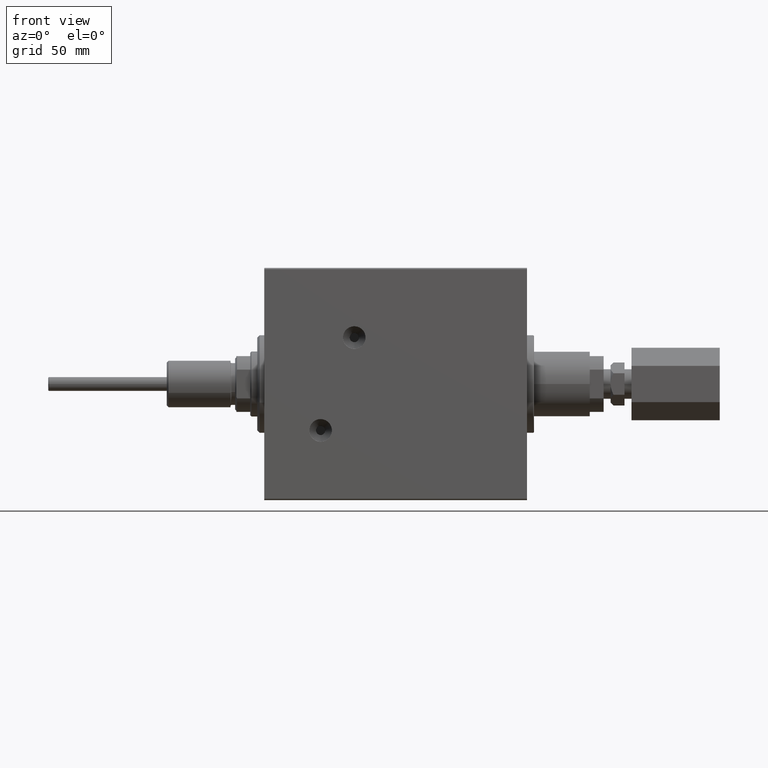
[diagram: clean part render]
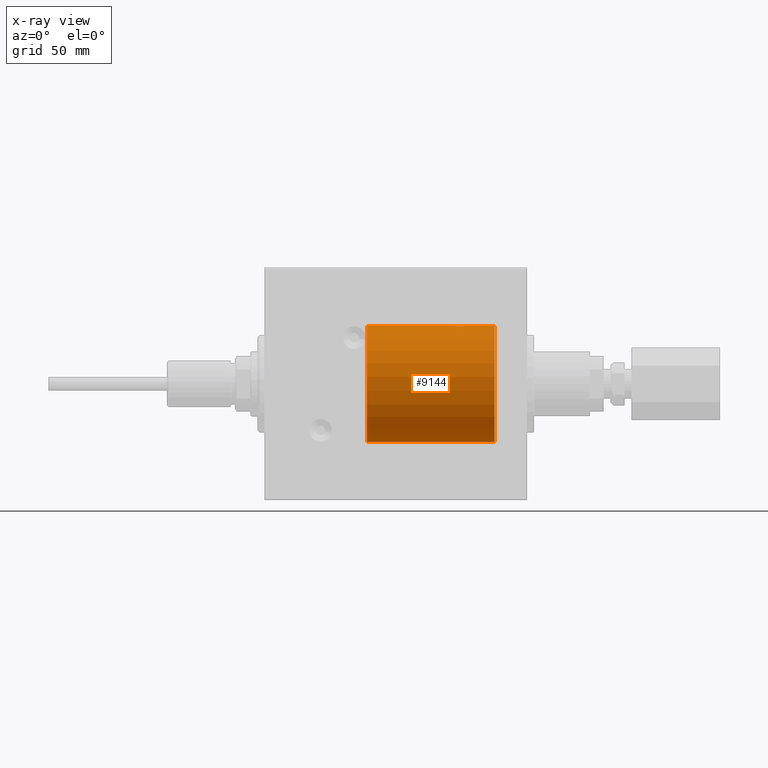
[diagram: x-ray — body ghosted, one internal face saturated and labeled with its STEP entity id]
A machine part, front view, then the same camera in x-ray: the body is ghosted and one INTERNAL B-rep face — a face not visible from any outside direction — is saturated and labeled: STEP entity #9144.
In plain terms, the highlighted cylindrical surface (partial cylindrical patch) has radius 25 mm, axis along (-1, -0, -0).
Its self-contained STEP definition (entity closure, byte-faithful):
#401 = CARTESIAN_POINT ( 'NONE',  ( 99.20000000000000284, 3.061616997868382254E-15, -25.00000000000000000 ) ) ;
#646 = CARTESIAN_POINT ( 'NONE',  ( 81.77985090779068855, -0.6480119923854293917, 24.99212088949390065 ) ) ;
#885 = EDGE_CURVE ( 'NONE', #12867, #12940, #22867, .T. ) ;
#1357 = CARTESIAN_POINT ( 'NONE',  ( 85.30723845838413411, -2.247417070759916591, 24.89885693081947338 ) ) ;
#1595 = CARTESIAN_POINT ( 'NONE',  ( 83.87052319885732743, -2.483544361357291397, 24.87635491893501793 ) ) ;
#2170 = CARTESIAN_POINT ( 'NONE',  ( 99.20000000000000284, 0.000000000000000000, 0.000000000000000000 ) ) ;
#2621 = LINE ( 'NONE', #39180, #31849 ) ;
#3077 = DIRECTION ( 'NONE',  ( 0.000000000000000000, 0.000000000000000000, 1.000000000000000000 ) ) ;
#4903 = VERTEX_POINT ( 'NONE', #26451 ) ;
#5411 = CARTESIAN_POINT ( 'NONE',  ( 86.70000000000001705, -2.483983388048395952E-15, 25.00000000000000000 ) ) ;
#5555 = DIRECTION ( 'NONE',  ( -1.000000000000000000, -0.000000000000000000, -0.000000000000000000 ) ) ;
#5653 = CARTESIAN_POINT ( 'NONE',  ( 82.94616804575497326, -2.169003991399888420, 24.90589728951137971 ) ) ;
#8288 = EDGE_CURVE ( 'NONE', #12940, #4903, #23179, .T. ) ;
#8291 = CARTESIAN_POINT ( 'NONE',  ( 85.45084023924053440, -2.170728182476741264, 24.90574631553725027 ) ) ;
#8526 = CARTESIAN_POINT ( 'NONE',  ( 81.95239748980446848, -1.106703319666895391, 24.97594585958023572 ) ) ;
#8910 = FACE_OUTER_BOUND ( 'NONE', #22434, .T. ) ;
#9144 = ADVANCED_FACE ( 'NONE', ( #8910 ), #16318, .F. ) ;
#10375 = EDGE_CURVE ( 'NONE', #12867, #19738, #14067, .T. ) ;
#11394 = CARTESIAN_POINT ( 'NONE',  ( 81.70000000000000284, -1.940242839436339586E-23, 25.00000000000000000 ) ) ;
#12111 = CARTESIAN_POINT ( 'NONE',  ( 84.52596570039463586, -2.484007091859783856, 24.87630842367763506 ) ) ;
#12581 = CARTESIAN_POINT ( 'NONE',  ( 86.44606379094069837, -1.109818057797422819, 24.97580694515542632 ) ) ;
#12867 = VERTEX_POINT ( 'NONE', #401 ) ;
#12940 = VERTEX_POINT ( 'NONE', #20681 ) ;
#13052 = CARTESIAN_POINT ( 'NONE',  ( 86.36827641493961494, -1.255214705003187436, 24.96884293994578741 ) ) ;
#13147 = DIRECTION ( 'NONE',  ( -1.000000000000000000, 0.000000000000000000, 0.000000000000000000 ) ) ;
#13613 = VECTOR ( 'NONE', #40627, 1000.000000000000000 ) ;
#14067 = CIRCLE ( 'NONE', #24014, 25.00000000000000000 ) ;
#16169 = CARTESIAN_POINT ( 'NONE',  ( 83.08963203491133243, -2.245863995402917368, 24.89899750494197050 ) ) ;
#16318 = CYLINDRICAL_SURFACE ( 'NONE', #29291, 25.00000000000000000 ) ;
#16742 = DIRECTION ( 'NONE',  ( 0.000000000000000000, 0.000000000000000000, 1.000000000000000000 ) ) ;
#18573 = VERTEX_POINT ( 'NONE', #47006 ) ;
#19738 = VERTEX_POINT ( 'NONE', #45220 ) ;
#19831 = B_SPLINE_CURVE_WITH_KNOTS ( 'NONE', 3,
 ( #11394, #40554, #33390, #646, #44359, #8526, #23822, #23588, #23351, #38396, #27412, #5653, #16169, #37925, #45787, #1595, #27173, #30750, #12111, #23097, #31228, #1357, #8291, #45319, #41264, #34815, #38155, #13052, #12581, #27655, #26698, #5411 ),
 .UNSPECIFIED., .F., .F.,
 ( 4, 2, 2, 2, 2, 2, 2, 2, 2, 2, 2, 2, 2, 2, 2, 4 ),
 ( 0.007821024441662306759, 0.008309723826317914896, 0.008798423210973524769, 0.009287122595629132907, 0.009775821980284742779, 0.01026452136494035092, 0.01075322074959596079, 0.01124192013425156893, 0.01173061951890717880, 0.01221931890356278694, 0.01270801828821839508, 0.01319671767287400321, 0.01368541705752961309, 0.01417411644218522296, 0.01466281582684083110, 0.01564021459615206472 ),
 .UNSPECIFIED. ) ;
#20305 = ORIENTED_EDGE ( 'NONE', *, *, #8288, .T. ) ;
#20681 = CARTESIAN_POINT ( 'NONE',  ( 44.20000000000000284, 3.061616997868382254E-15, -25.00000000000000000 ) ) ;
#21005 = CARTESIAN_POINT ( 'NONE',  ( 44.20000000000000284, 0.000000000000000000, 0.000000000000000000 ) ) ;
#21076 = EDGE_CURVE ( 'NONE', #18573, #4903, #2621, .T. ) ;
#22383 = AXIS2_PLACEMENT_3D ( 'NONE', #21005, #31305, #3077 ) ;
#22434 = EDGE_LOOP ( 'NONE', ( #38316, #28468, #20305, #30991, #44202, #31397 ) ) ;
#22811 = EDGE_CURVE ( 'NONE', #18573, #45609, #19831, .T. ) ;
#22867 = LINE ( 'NONE', #29348, #39764 ) ;
#23097 = CARTESIAN_POINT ( 'NONE',  ( 84.84560666148637154, -2.420689345803777925, 24.88254961038874669 ) ) ;
#23173 = LINE ( 'NONE', #26055, #13613 ) ;
#23179 = CIRCLE ( 'NONE', #22383, 25.00000000000000000 ) ;
#23351 = CARTESIAN_POINT ( 'NONE',  ( 82.31587617213529029, -1.651251241585111051, 24.94567559498348785 ) ) ;
#23588 = CARTESIAN_POINT ( 'NONE',  ( 82.21250184165602093, -1.525407911884385292, 24.95379469572361941 ) ) ;
#23673 = EDGE_CURVE ( 'NONE', #19738, #45609, #23173, .T. ) ;
#23822 = CARTESIAN_POINT ( 'NONE',  ( 82.02988709719073768, -1.252049606094356005, 24.96900299967627035 ) ) ;
#24014 = AXIS2_PLACEMENT_3D ( 'NONE', #2170, #13147, #16742 ) ;
#24206 = DIRECTION ( 'NONE',  ( 0.000000000000000000, 0.000000000000000000, 1.000000000000000000 ) ) ;
#26055 = CARTESIAN_POINT ( 'NONE',  ( 99.20000000000000284, 0.000000000000000000, 25.00000000000000000 ) ) ;
#26451 = CARTESIAN_POINT ( 'NONE',  ( 44.20000000000000284, 0.000000000000000000, 25.00000000000000000 ) ) ;
#26698 = CARTESIAN_POINT ( 'NONE',  ( 86.70000000000004547, -0.3305063766663757785, 25.00000000000001066 ) ) ;
#27173 = CARTESIAN_POINT ( 'NONE',  ( 84.03293504821938598, -2.499872792855102333, 24.87469871246081610 ) ) ;
#27412 = CARTESIAN_POINT ( 'NONE',  ( 82.67463817756922140, -1.987446652080280263, 24.92104239223420592 ) ) ;
#27655 = CARTESIAN_POINT ( 'NONE',  ( 86.63349355239751048, -0.6588655613945894052, 24.99312727339970053 ) ) ;
#28468 = ORIENTED_EDGE ( 'NONE', *, *, #885, .T. ) ;
#29291 = AXIS2_PLACEMENT_3D ( 'NONE', #30900, #5555, #24206 ) ;
#29348 = CARTESIAN_POINT ( 'NONE',  ( 99.20000000000000284, 3.061616997868382254E-15, -25.00000000000000000 ) ) ;
#30750 = CARTESIAN_POINT ( 'NONE',  ( 84.36323589638543297, -2.500125740978215383, 24.87467329022545215 ) ) ;
#30900 = CARTESIAN_POINT ( 'NONE',  ( 99.20000000000000284, 0.000000000000000000, 0.000000000000000000 ) ) ;
#30991 = ORIENTED_EDGE ( 'NONE', *, *, #21076, .F. ) ;
#31228 = CARTESIAN_POINT ( 'NONE',  ( 85.00435660916305380, -2.372734907014195205, 24.88722742718433523 ) ) ;
#31305 = DIRECTION ( 'NONE',  ( -1.000000000000000000, 0.000000000000000000, 0.000000000000000000 ) ) ;
#31397 = ORIENTED_EDGE ( 'NONE', *, *, #23673, .F. ) ;
#31421 = CARTESIAN_POINT ( 'NONE',  ( 86.70000000000001705, -2.483983388048395952E-15, 25.00000000000000000 ) ) ;
#31849 = VECTOR ( 'NONE', #46808, 1000.000000000000000 ) ;
#33390 = CARTESIAN_POINT ( 'NONE',  ( 81.71582159942344958, -0.3254210271412267264, 24.99840249400844883 ) ) ;
#34815 = CARTESIAN_POINT ( 'NONE',  ( 86.08185954148646601, -1.653834020452955356, 24.94550385189584674 ) ) ;
#37925 = CARTESIAN_POINT ( 'NONE',  ( 83.39211657594194094, -2.371528299825766517, 24.88734287464371064 ) ) ;
#38155 = CARTESIAN_POINT ( 'NONE',  ( 86.18538033717094038, -1.528152964861319685, 24.95362559291378091 ) ) ;
#38316 = ORIENTED_EDGE ( 'NONE', *, *, #10375, .F. ) ;
#38396 = CARTESIAN_POINT ( 'NONE',  ( 82.54616663850663372, -1.881857718844727856, 24.92933960374835323 ) ) ;
#39180 = CARTESIAN_POINT ( 'NONE',  ( 99.20000000000000284, 0.000000000000000000, 25.00000000000000000 ) ) ;
#39764 = VECTOR ( 'NONE', #43908, 1000.000000000000000 ) ;
#40554 = CARTESIAN_POINT ( 'NONE',  ( 81.70000000000000284, -0.1631750940176225073, 25.00000000000001421 ) ) ;
#40627 = DIRECTION ( 'NONE',  ( -1.000000000000000000, -0.000000000000000000, -0.000000000000000000 ) ) ;
#41264 = CARTESIAN_POINT ( 'NONE',  ( 85.85121133559114526, -1.884161199660636221, 24.92916496727982434 ) ) ;
#43908 = DIRECTION ( 'NONE',  ( -1.000000000000000000, -0.000000000000000000, -0.000000000000000000 ) ) ;
#44202 = ORIENTED_EDGE ( 'NONE', *, *, #22811, .T. ) ;
#44359 = CARTESIAN_POINT ( 'NONE',  ( 81.82784030591392366, -0.8058335233485560689, 24.98746277938382931 ) ) ;
#45220 = CARTESIAN_POINT ( 'NONE',  ( 99.20000000000000284, 0.000000000000000000, 25.00000000000000000 ) ) ;
#45319 = CARTESIAN_POINT ( 'NONE',  ( 85.72256774340191043, -1.989585286700267241, 24.92087098724765326 ) ) ;
#45609 = VERTEX_POINT ( 'NONE', #31421 ) ;
#45787 = CARTESIAN_POINT ( 'NONE',  ( 83.55095609830904380, -2.419770561643928897, 24.88263927071751169 ) ) ;
#46808 = DIRECTION ( 'NONE',  ( -1.000000000000000000, -0.000000000000000000, -0.000000000000000000 ) ) ;
#47006 = CARTESIAN_POINT ( 'NONE',  ( 81.70000000000000284, -1.940242839436339586E-23, 25.00000000000000000 ) ) ;